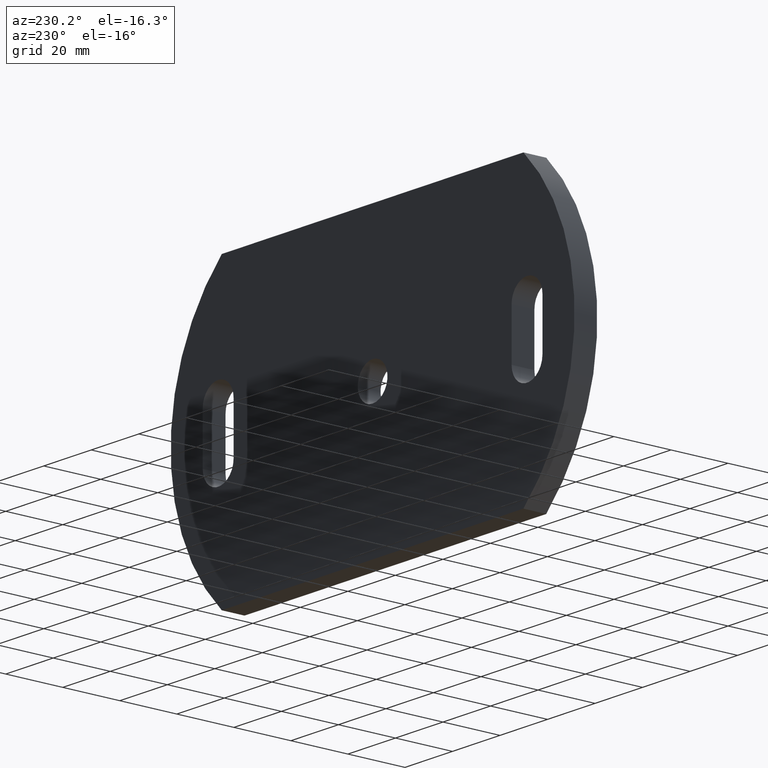
[diagram: clean part render]
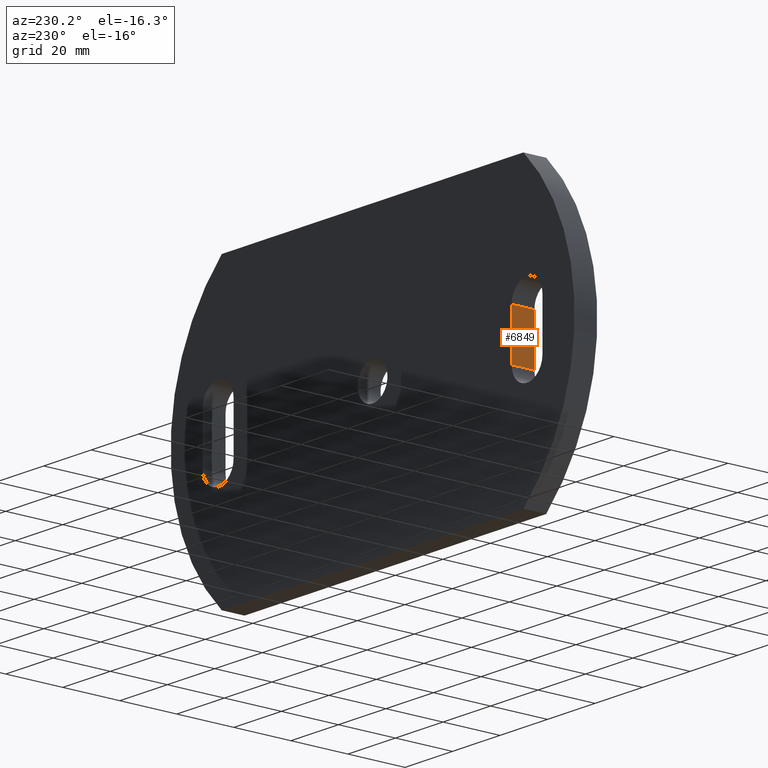
[diagram: same view with one face highlighted and labeled with its STEP entity id]
A machine part, auxiliary view. The second image highlights one B-rep face of the part: STEP entity #6849.
In plain terms, the highlighted planar face has unit normal (1, 0, -0).
Its self-contained STEP definition (entity closure, byte-faithful):
#267 = CARTESIAN_POINT ( 'NONE',  ( -58.50000000000000700, 8.000000000000000000, -8.499999999999984000 ) ) ;
#344 = CARTESIAN_POINT ( 'NONE',  ( -58.50000000000000700, 0.0000000000000000000, 8.499999999999984000 ) ) ;
#541 = DIRECTION ( 'NONE',  ( -0.0000000000000000000, -0.0000000000000000000, -1.000000000000000000 ) ) ;
#793 = ORIENTED_EDGE ( 'NONE', *, *, #9356, .T. ) ;
#848 = EDGE_CURVE ( 'NONE', #4047, #11043, #10959, .T. ) ;
#1114 = EDGE_LOOP ( 'NONE', ( #5554, #10935, #2339, #793 ) ) ;
#1784 = VECTOR ( 'NONE', #7154, 1000.000000000000000 ) ;
#2061 = CARTESIAN_POINT ( 'NONE',  ( -58.50000000000000700, 0.0000000000000000000, -8.499999999999984000 ) ) ;
#2339 = ORIENTED_EDGE ( 'NONE', *, *, #848, .F. ) ;
#3239 = DIRECTION ( 'NONE',  ( -0.0000000000000000000, 1.000000000000000000, -0.0000000000000000000 ) ) ;
#3384 = PLANE ( 'NONE',  #3501 ) ;
#3501 = AXIS2_PLACEMENT_3D ( 'NONE', #6707, #6744, #6848 ) ;
#3583 = VERTEX_POINT ( 'NONE', #267 ) ;
#3622 = CARTESIAN_POINT ( 'NONE',  ( -58.50000000000000700, 8.000000000000000000, 8.499999999999984000 ) ) ;
#4047 = VERTEX_POINT ( 'NONE', #6751 ) ;
#4535 = LINE ( 'NONE', #9192, #10791 ) ;
#5397 = LINE ( 'NONE', #7477, #9258 ) ;
#5554 = ORIENTED_EDGE ( 'NONE', *, *, #6414, .T. ) ;
#6232 = DIRECTION ( 'NONE',  ( -0.0000000000000000000, -0.0000000000000000000, -1.000000000000000000 ) ) ;
#6414 = EDGE_CURVE ( 'NONE', #10554, #3583, #4535, .T. ) ;
#6707 = CARTESIAN_POINT ( 'NONE',  ( -58.50000000000000700, 0.0000000000000000000, -8.499999999999984000 ) ) ;
#6744 = DIRECTION ( 'NONE',  ( 1.000000000000000000, 0.0000000000000000000, -0.0000000000000000000 ) ) ;
#6751 = CARTESIAN_POINT ( 'NONE',  ( -58.50000000000000700, 0.0000000000000000000, 8.499999999999984000 ) ) ;
#6848 = DIRECTION ( 'NONE',  ( -0.0000000000000000000, 0.0000000000000000000, -1.000000000000000000 ) ) ;
#6849 = ADVANCED_FACE ( 'NONE', ( #8647 ), #3384, .F. ) ;
#7154 = DIRECTION ( 'NONE',  ( -0.0000000000000000000, 1.000000000000000000, -0.0000000000000000000 ) ) ;
#7477 = CARTESIAN_POINT ( 'NONE',  ( -58.50000000000000700, 0.0000000000000000000, -8.499999999999984000 ) ) ;
#8486 = LINE ( 'NONE', #344, #1784 ) ;
#8647 = FACE_OUTER_BOUND ( 'NONE', #1114, .T. ) ;
#9192 = CARTESIAN_POINT ( 'NONE',  ( -58.50000000000000700, 8.000000000000000000, -8.499999999999984000 ) ) ;
#9258 = VECTOR ( 'NONE', #3239, 1000.000000000000000 ) ;
#9356 = EDGE_CURVE ( 'NONE', #4047, #10554, #8486, .T. ) ;
#9888 = EDGE_CURVE ( 'NONE', #11043, #3583, #5397, .T. ) ;
#10030 = VECTOR ( 'NONE', #6232, 1000.000000000000000 ) ;
#10445 = CARTESIAN_POINT ( 'NONE',  ( -58.50000000000000700, 0.0000000000000000000, -8.499999999999984000 ) ) ;
#10554 = VERTEX_POINT ( 'NONE', #3622 ) ;
#10791 = VECTOR ( 'NONE', #541, 1000.000000000000000 ) ;
#10935 = ORIENTED_EDGE ( 'NONE', *, *, #9888, .F. ) ;
#10959 = LINE ( 'NONE', #10445, #10030 ) ;
#11043 = VERTEX_POINT ( 'NONE', #2061 ) ;